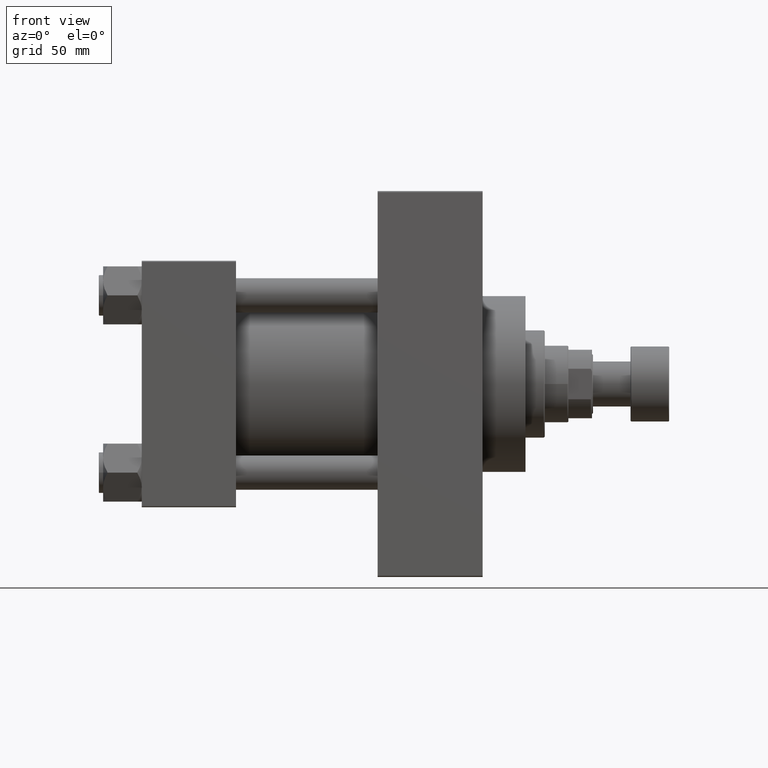
[diagram: clean part render]
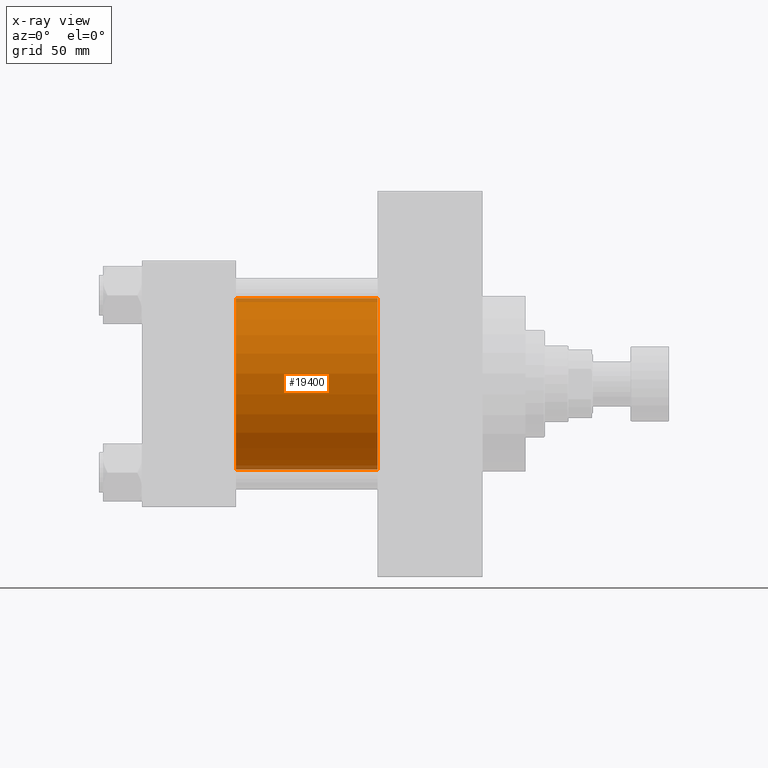
[diagram: x-ray — body ghosted, one internal face saturated and labeled with its STEP entity id]
A machine part, front view, then the same camera in x-ray: the body is ghosted and one INTERNAL B-rep face — a face not visible from any outside direction — is saturated and labeled: STEP entity #19400.
In plain terms, the highlighted cylindrical surface (partial cylindrical patch) has radius 40 mm, axis along (-1, -0, -0).
Its self-contained STEP definition (entity closure, byte-faithful):
#868 = CARTESIAN_POINT ( 'NONE',  ( 110.0000000000000000, -2.602085213965210642E-15, 0.000000000000000000 ) ) ;
#1495 = DIRECTION ( 'NONE',  ( -1.000000000000000000, -0.000000000000000000, -0.000000000000000000 ) ) ;
#2768 = CARTESIAN_POINT ( 'NONE',  ( 44.00000000000000000, -2.602085213965210642E-15, 0.000000000000000000 ) ) ;
#2862 = VERTEX_POINT ( 'NONE', #47259 ) ;
#3492 = DIRECTION ( 'NONE',  ( 1.000000000000000000, 0.000000000000000000, 0.000000000000000000 ) ) ;
#4300 = AXIS2_PLACEMENT_3D ( 'NONE', #868, #15717, #8405 ) ;
#5710 = CARTESIAN_POINT ( 'NONE',  ( 110.0000000000000000, -2.602085213965210642E-15, 40.00000000000000000 ) ) ;
#7261 = VERTEX_POINT ( 'NONE', #46016 ) ;
#7437 = CYLINDRICAL_SURFACE ( 'NONE', #44520, 40.00000000000000000 ) ;
#8405 = DIRECTION ( 'NONE',  ( 0.000000000000000000, 0.000000000000000000, -1.000000000000000000 ) ) ;
#8796 = LINE ( 'NONE', #38722, #30840 ) ;
#10711 = EDGE_CURVE ( 'NONE', #30530, #7261, #31504, .T. ) ;
#15717 = DIRECTION ( 'NONE',  ( 1.000000000000000000, 0.000000000000000000, 0.000000000000000000 ) ) ;
#17133 = VECTOR ( 'NONE', #24932, 1000.000000000000000 ) ;
#19400 = ADVANCED_FACE ( 'NONE', ( #44439 ), #7437, .F. ) ;
#21273 = DIRECTION ( 'NONE',  ( 0.000000000000000000, 0.000000000000000000, -1.000000000000000000 ) ) ;
#21476 = EDGE_CURVE ( 'NONE', #7261, #2862, #36018, .T. ) ;
#22070 = AXIS2_PLACEMENT_3D ( 'NONE', #2768, #3492, #21273 ) ;
#23962 = CARTESIAN_POINT ( 'NONE',  ( 110.0000000000000000, -2.602085213965210642E-15, 40.00000000000000000 ) ) ;
#24932 = DIRECTION ( 'NONE',  ( -1.000000000000000000, -0.000000000000000000, -0.000000000000000000 ) ) ;
#25290 = CIRCLE ( 'NONE', #4300, 40.00000000000000000 ) ;
#26003 = CARTESIAN_POINT ( 'NONE',  ( 110.0000000000000000, 2.296501982624201990E-15, -40.00000000000000000 ) ) ;
#26650 = EDGE_CURVE ( 'NONE', #30530, #44169, #25290, .T. ) ;
#26995 = EDGE_LOOP ( 'NONE', ( #33999, #32625, #46927, #38370 ) ) ;
#27130 = DIRECTION ( 'NONE',  ( 0.000000000000000000, 0.000000000000000000, 1.000000000000000000 ) ) ;
#29394 = EDGE_CURVE ( 'NONE', #44169, #2862, #8796, .T. ) ;
#30530 = VERTEX_POINT ( 'NONE', #23962 ) ;
#30543 = CARTESIAN_POINT ( 'NONE',  ( 110.0000000000000000, -2.602085213965210642E-15, 0.000000000000000000 ) ) ;
#30840 = VECTOR ( 'NONE', #1495, 1000.000000000000000 ) ;
#31504 = LINE ( 'NONE', #5710, #17133 ) ;
#32625 = ORIENTED_EDGE ( 'NONE', *, *, #29394, .T. ) ;
#33999 = ORIENTED_EDGE ( 'NONE', *, *, #26650, .T. ) ;
#36018 = CIRCLE ( 'NONE', #22070, 40.00000000000000000 ) ;
#38370 = ORIENTED_EDGE ( 'NONE', *, *, #10711, .F. ) ;
#38722 = CARTESIAN_POINT ( 'NONE',  ( 110.0000000000000000, 2.296501982624201990E-15, -40.00000000000000000 ) ) ;
#41974 = DIRECTION ( 'NONE',  ( -1.000000000000000000, -0.000000000000000000, -0.000000000000000000 ) ) ;
#44169 = VERTEX_POINT ( 'NONE', #26003 ) ;
#44439 = FACE_OUTER_BOUND ( 'NONE', #26995, .T. ) ;
#44520 = AXIS2_PLACEMENT_3D ( 'NONE', #30543, #41974, #27130 ) ;
#46016 = CARTESIAN_POINT ( 'NONE',  ( 44.00000000000000000, -2.602085213965210642E-15, 40.00000000000000000 ) ) ;
#46927 = ORIENTED_EDGE ( 'NONE', *, *, #21476, .F. ) ;
#47259 = CARTESIAN_POINT ( 'NONE',  ( 44.00000000000000000, 2.296501982624201990E-15, -40.00000000000000000 ) ) ;